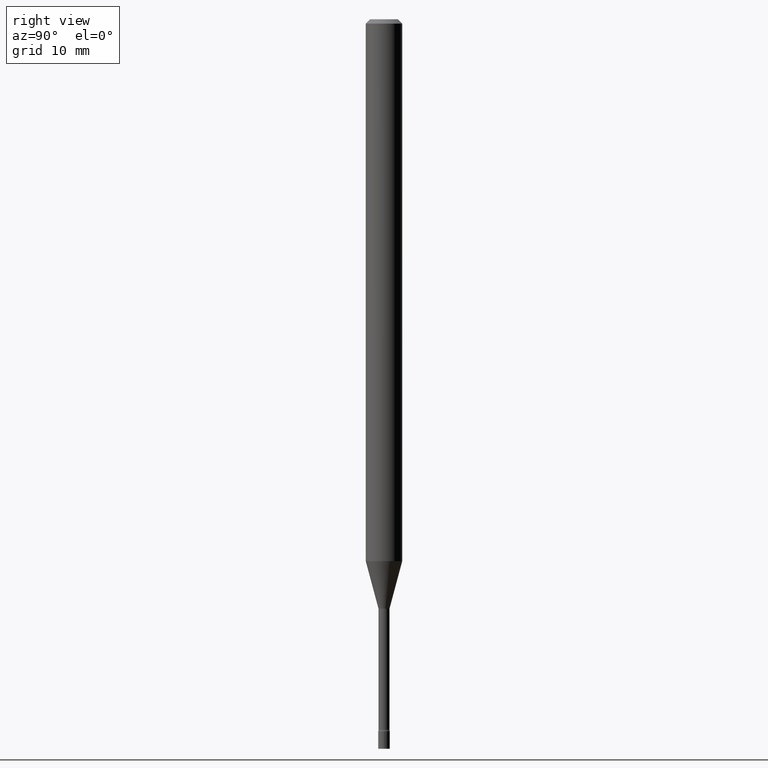
[diagram: clean part render]
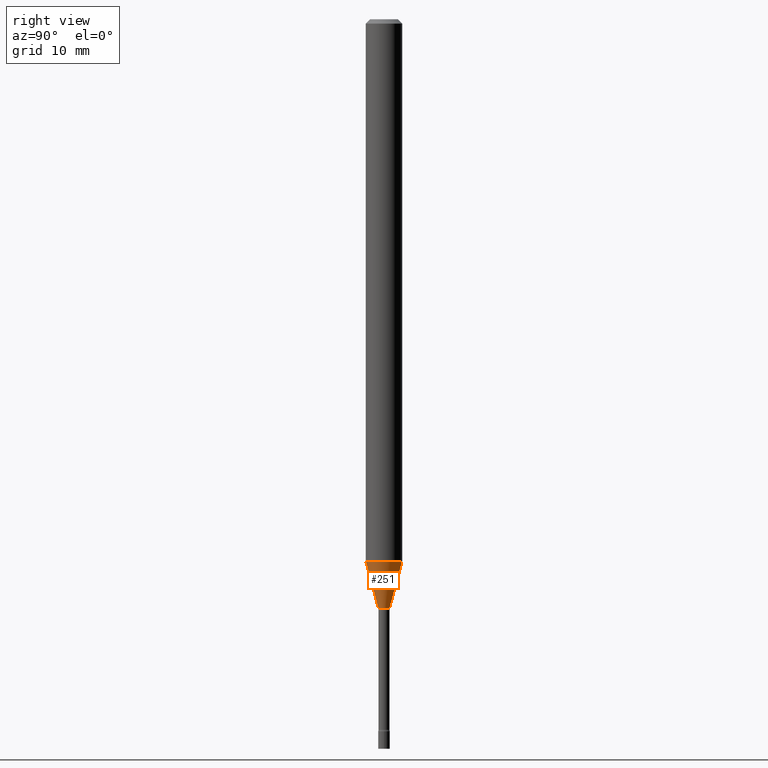
[diagram: same view with one face highlighted and labeled with its STEP entity id]
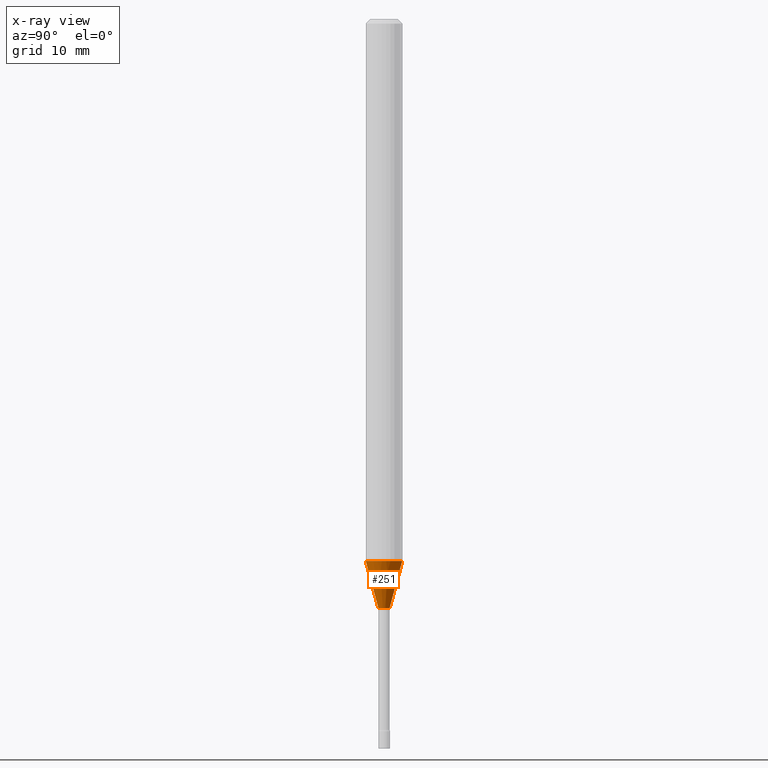
[diagram: x-ray of the same camera — body ghosted, the highlighted face saturated]
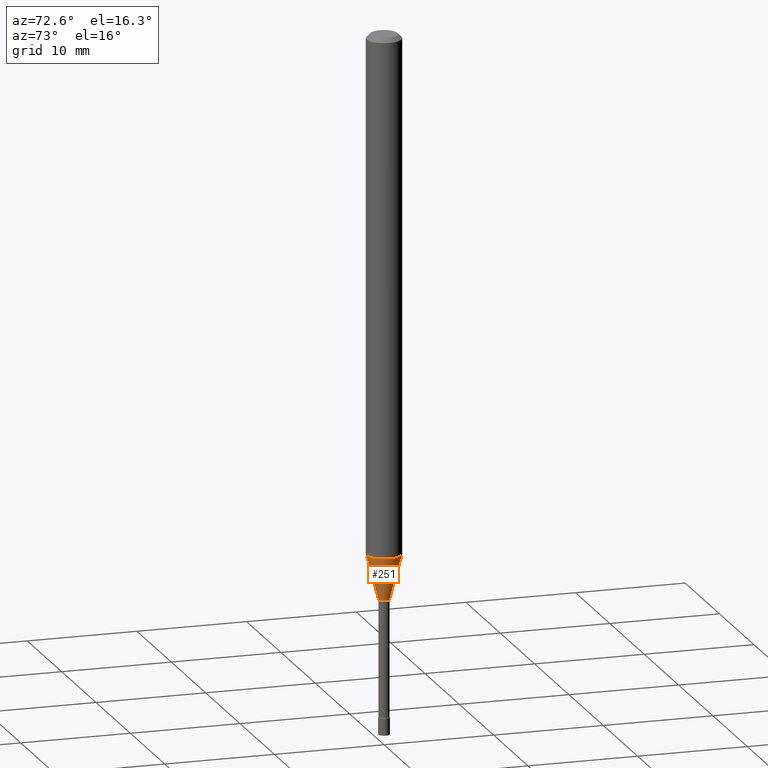
[diagram: same view with one face highlighted and labeled with its STEP entity id]
A machine part, right view. The second image highlights one B-rep face of the part: STEP entity #251.
The next image is the same camera in x-ray: the body ghosted, the highlighted face saturated — about 0% of this face is hidden behind the body in this view.
A second angle (auxiliary view) of the same face is appended — the face is thin or edge-on in the first view.
In plain terms, the highlighted conical surface has half-angle 15 deg.
Its self-contained STEP definition (entity closure, byte-faithful):
#2 = VERTEX_POINT ( 'NONE', #470 ) ;
#7 = AXIS2_PLACEMENT_3D ( 'NONE', #341, #99, #302 ) ;
#16 = ORIENTED_EDGE ( 'NONE', *, *, #116, .T. ) ;
#22 = CIRCLE ( 'NONE', #60, 0.01931111260566398605 ) ;
#25 = CARTESIAN_POINT ( 'NONE',  ( 1.372137078140477580E-16, 0.01931111260565693613, -2.018092501787273285 ) ) ;
#60 = AXIS2_PLACEMENT_3D ( 'NONE', #407, #520, #160 ) ;
#99 = DIRECTION ( 'NONE',  ( -2.445424306159104546E-29, 3.491545065413207519E-15, 1.000000000000000000 ) ) ;
#109 = EDGE_CURVE ( 'NONE', #2, #217, #275, .T. ) ;
#116 = EDGE_CURVE ( 'NONE', #2, #311, #22, .T. ) ;
#118 = DIRECTION ( 'NONE',  ( -6.982962677686265922E-15, -1.000000000000000000, 4.370956789862821150E-15 ) ) ;
#148 = DIRECTION ( 'NONE',  ( -1.807323732225326984E-15, -0.2588190451025177419, 0.9659258262890690894 ) ) ;
#160 = DIRECTION ( 'NONE',  ( -6.982962677686265922E-15, -1.000000000000000000, 0.000000000000000000 ) ) ;
#183 = CONICAL_SURFACE ( 'NONE', #7, 0.01931111260566398605, 0.2617993877991497964 ) ;
#186 = CARTESIAN_POINT ( 'NONE',  ( -1.348487785898990376E-16, -0.01931111260567103249, -2.018092501787273285 ) ) ;
#214 = FACE_OUTER_BOUND ( 'NONE', #463, .T. ) ;
#217 = VERTEX_POINT ( 'NONE', #435 ) ;
#223 = CARTESIAN_POINT ( 'NONE',  ( 4.440892098501077785E-16, 0.06249999999999350520, -1.856909379709240637 ) ) ;
#233 = EDGE_CURVE ( 'NONE', #217, #342, #422, .T. ) ;
#251 = ADVANCED_FACE ( 'NONE', ( #214 ), #183, .T. ) ;
#275 = LINE ( 'NONE', #186, #283 ) ;
#283 = VECTOR ( 'NONE', #148, 39.37007874015748143 ) ;
#302 = DIRECTION ( 'NONE',  ( -6.982962677686265922E-15, -1.000000000000000000, 0.000000000000000000 ) ) ;
#303 = ORIENTED_EDGE ( 'NONE', *, *, #364, .T. ) ;
#311 = VERTEX_POINT ( 'NONE', #348 ) ;
#315 = ORIENTED_EDGE ( 'NONE', *, *, #109, .F. ) ;
#322 = CARTESIAN_POINT ( 'NONE',  ( 4.540931331475802069E-29, -6.483482781643298717E-15, -1.856909379709240415 ) ) ;
#341 = CARTESIAN_POINT ( 'NONE',  ( 4.935092455948034223E-29, -7.046260916162748701E-15, -2.018092501787273285 ) ) ;
#342 = VERTEX_POINT ( 'NONE', #223 ) ;
#348 = CARTESIAN_POINT ( 'NONE',  ( 2.906514588320780024E-16, 0.01931111260565693613, -2.018092501787273285 ) ) ;
#364 = EDGE_CURVE ( 'NONE', #311, #342, #392, .T. ) ;
#388 = AXIS2_PLACEMENT_3D ( 'NONE', #322, #476, #118 ) ;
#392 = LINE ( 'NONE', #25, #445 ) ;
#407 = CARTESIAN_POINT ( 'NONE',  ( 4.935092455948034223E-29, -7.046260916162748701E-15, -2.018092501787273285 ) ) ;
#422 = CIRCLE ( 'NONE', #388, 0.06250000000000000000 ) ;
#431 = DIRECTION ( 'NONE',  ( 1.839019923739597160E-15, 0.2588190451025245142, 0.9659258262890673130 ) ) ;
#435 = CARTESIAN_POINT ( 'NONE',  ( -4.364351673553463099E-16, -0.06250000000000649480, -1.856909379709239971 ) ) ;
#445 = VECTOR ( 'NONE', #431, 39.37007874015748143 ) ;
#463 = EDGE_LOOP ( 'NONE', ( #16, #303, #516, #315 ) ) ;
#470 = CARTESIAN_POINT ( 'NONE',  ( -1.348487785898990376E-16, -0.01931111260567103249, -2.018092501787273285 ) ) ;
#476 = DIRECTION ( 'NONE',  ( -2.445424306159104546E-29, 3.491545065413207519E-15, 1.000000000000000000 ) ) ;
#516 = ORIENTED_EDGE ( 'NONE', *, *, #233, .F. ) ;
#520 = DIRECTION ( 'NONE',  ( -2.445424306159104546E-29, 3.491545065413207519E-15, 1.000000000000000000 ) ) ;